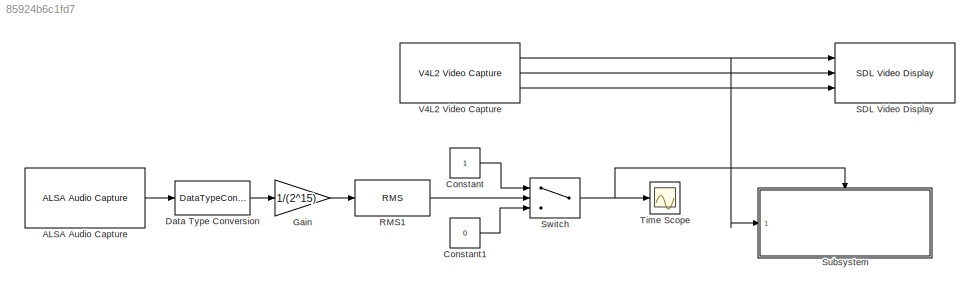
MODEL slx_85924b6c1fd7
KIND model
CONFIG AbsTol = auto
CONFIG FixedStep = auto
CONFIG MaxStep = auto
CONFIG MinStep = auto
CONFIG RelTol = 1e-3
CONFIG SampleTimeConstraint = Unconstrained
CONFIG Solver = FixedStepAuto
CONFIG SolverMode = Auto
CONFIG SolverName = FixedStepAuto
CONFIG StartTime = 0.0
CONFIG StopTime = 10.0
BLOCK [Reference] ALSA Audio Capture  REF=embdlinuxlib/ALSA Audio Capture
  Ports = [0, 1]
  SourceBlock = embdlinuxlib/ALSA Audio Capture
  SourceType = ALSA Audio Capture
BLOCK [Constant] Constant
BLOCK [Constant] Constant1
  Value = 0
BLOCK [DataTypeConversion] Data Type Conversion
  OutDataTypeStr = double
  RndMeth = Floor
  SaturateOnIntegerOverflow = off
BLOCK [Gain] Gain
  Gain = 1/(2^15)
  OutDataTypeStr = Inherit: Inherit via internal rule
  ParamDataTypeStr = Inherit: Inherit via internal rule
  SaturateOnIntegerOverflow = off
BLOCK [Reference] RMS1  REF=dspstat3/RMS
  Ports = [1, 1]
  SourceBlock = dspstat3/RMS
  SourceType = RMS
  UserDataPersistent = on
BLOCK [Reference] SDL Video Display  REF=embdlinuxlib/SDL Video Display
  Ports = [3]
  SourceBlock = embdlinuxlib/SDL Video Display
  SourceType = SDL Video Display
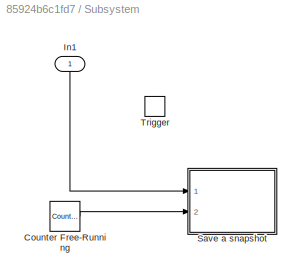
BLOCK [SubSystem] Subsystem
  Ports = [1, 0, 0, 1]
  RequestExecContextInheritance = off
  Variant = off
BLOCK [Reference] Subsystem/Counter Free-Running  REF=simulink/Sources/Counter
Free-Running
  Ports = [0, 1]
  SourceBlock = simulink/Sources/Counter\nFree-Running
  SourceType = Counter Free-Running
BLOCK [Inport] Subsystem/In1
  IconDisplay = Port number
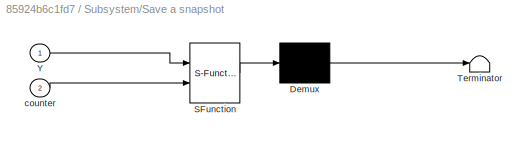
BLOCK [SubSystem] Subsystem/Save a snapshot
  ErrorFcn = Stateflow.Translate.translate
  PermitHierarchicalResolution = ExplicitOnly
  Ports = [2]
  RequestExecContextInheritance = off
  SFBlockType = MATLAB Function
  TreatAsAtomicUnit = on
  Variant = off
BLOCK [Demux] Subsystem/Save a snapshot/ Demux 
  Outputs = 1
  Ports = [1, 1]
BLOCK [S-Function] Subsystem/Save a snapshot/ SFunction 
  EnableBusSupport = on
  FunctionName = sf_sfun
  PortCounts = [2 1]
  Ports = [2, 1]
  SFunctionDeploymentMode = off
  Tag = Stateflow S-Function app03_2_capture_camera 2
BLOCK [Terminator] Subsystem/Save a snapshot/ Terminator 
BLOCK [Inport] Subsystem/Save a snapshot/Y
  IconDisplay = Port number
BLOCK [Inport] Subsystem/Save a snapshot/counter
  IconDisplay = Port number
  Port = 2
BLOCK [TriggerPort] Subsystem/Trigger
  Ports = []
  StatesWhenEnabling = held
  VariantControl = Variant
BLOCK [Switch] Switch
  Criteria = u2 > Threshold
  InputSameDT = off
  SaturateOnIntegerOverflow = off
  Threshold = 80
BLOCK [Scope] Time Scope
  DefaultConfigurationName = spbscopes.TimeScopeBlockCfg
  Ports = [1]
  ScopeSpecificationString = C++SS(StrPVP('SaveName','ScopeData'),StrPVP('LimitDataPoints','on'),StrPVP('DataFormat','Array'),StrPVP('Decimation','1'),StrPVP('BlockParamSampleInput','off'))
  UserDataPersistent = on
BLOCK [Reference] V4L2 Video Capture  REF=embdlinuxlib/V4L2 Video Capture
  Ports = [0, 3]
  SourceBlock = embdlinuxlib/V4L2 Video Capture
  SourceType = V4L2 Video Capture
LINE ALSA Audio Capture:1 -> Data Type Conversion:1
LINE Constant1:1 -> Switch:3
LINE Constant:1 -> Switch:1
LINE Data Type Conversion:1 -> Gain:1
LINE Gain:1 -> RMS1:1
LINE RMS1:1 -> Switch:2
LINE Subsystem/Counter Free-Running:1 -> Subsystem/Save a snapshot:2
LINE Subsystem/In1:1 -> Subsystem/Save a snapshot:1
NET Switch:1 -> Subsystem:trigger, Time Scope:1
NET V4L2 Video Capture:1 -> SDL Video Display:1, Subsystem:1
LINE V4L2 Video Capture:2 -> SDL Video Display:2
LINE V4L2 Video Capture:3 -> SDL Video Display:3
note: NET lines group one-source signal fan-out (src -> all destinations, sorted); 1:1 wires keep LINE
CHART Subsystem/Save a snapshot states=1 transitions=1
  STATE_LABEL 'eML_blk_kernel()'
  STATE_LABEL "SCRIPT:\nfunction fcn(Y, counter)\n%#codegen\n\n% Save 160x120 grayscale image to a file\nformat = ['%d ', 0];\nfname  = coder.nullcopy(uint8(zeros(1, 32)));\ncoder.ceval('sprintf', coder.wref(fname), ['img%d.dat', 0], counter);\nfd = coder.opaque('FILE *');\nfd = coder.ceval('fopen', fname, ['w', 0]);\nfor i = 1:160\n    for j = 1:120\n        coder.ceval('fprintf', fd, format, Y(i, j));\n    end\nend\ncoder.ce...<+20ch>"
